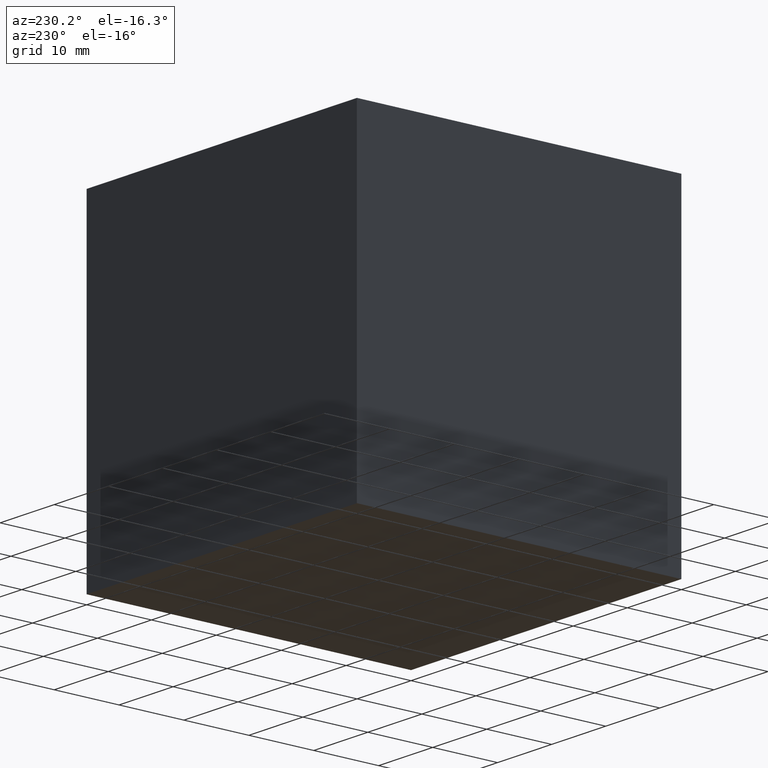
[diagram: clean part render]
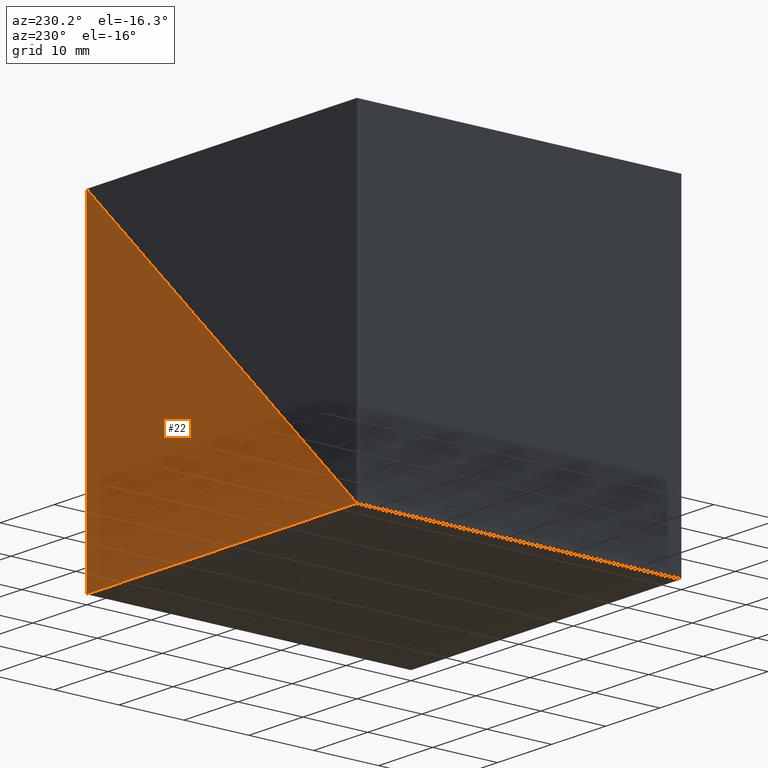
[diagram: same view with one face highlighted and labeled with its STEP entity id]
A machine part, auxiliary view. The second image highlights one B-rep face of the part: STEP entity #22.
In plain terms, the highlighted planar face has unit normal (-0, 1, 0).
Its self-contained STEP definition (entity closure, byte-faithful):
#17 = DIRECTION ( 'NONE',  ( -0.0000000000000000000, 1.000000000000000000, 0.0000000000000000000 ) ) ;
#20 = CARTESIAN_POINT ( 'NONE',  ( 0.0000000000000000000, 50.00000000000000000, 0.0000000000000000000 ) ) ;
#22 = ADVANCED_FACE ( 'NONE', ( #180 ), #299, .T. ) ;
#24 = VERTEX_POINT ( 'NONE', #132 ) ;
#27 = CARTESIAN_POINT ( 'NONE',  ( -50.00000000000000000, 50.00000000000000000, -49.99999999999999300 ) ) ;
#47 = DIRECTION ( 'NONE',  ( -1.000000000000000000, 0.0000000000000000000, 1.387778780781445700E-016 ) ) ;
#51 = CARTESIAN_POINT ( 'NONE',  ( 0.0000000000000000000, 50.00000000000000000, 0.0000000000000000000 ) ) ;
#53 = CARTESIAN_POINT ( 'NONE',  ( 0.0000000000000000000, 50.00000000000000000, -50.00000000000000000 ) ) ;
#54 = LINE ( 'NONE', #51, #121 ) ;
#94 = VECTOR ( 'NONE', #47, 1000.000000000000000 ) ;
#108 = ORIENTED_EDGE ( 'NONE', *, *, #248, .T. ) ;
#121 = VECTOR ( 'NONE', #241, 1000.000000000000000 ) ;
#122 = VECTOR ( 'NONE', #245, 1000.000000000000000 ) ;
#132 = CARTESIAN_POINT ( 'NONE',  ( -50.00000000000000000, 50.00000000000000000, -49.99999999999999300 ) ) ;
#134 = LINE ( 'NONE', #27, #122 ) ;
#149 = LINE ( 'NONE', #226, #94 ) ;
#151 = EDGE_CURVE ( 'NONE', #179, #291, #54, .T. ) ;
#179 = VERTEX_POINT ( 'NONE', #278 ) ;
#180 = FACE_OUTER_BOUND ( 'NONE', #203, .T. ) ;
#200 = ORIENTED_EDGE ( 'NONE', *, *, #151, .T. ) ;
#203 = EDGE_LOOP ( 'NONE', ( #242, #200, #108 ) ) ;
#226 = CARTESIAN_POINT ( 'NONE',  ( 0.0000000000000000000, 50.00000000000000000, -50.00000000000000000 ) ) ;
#241 = DIRECTION ( 'NONE',  ( 0.0000000000000000000, 0.0000000000000000000, -1.000000000000000000 ) ) ;
#242 = ORIENTED_EDGE ( 'NONE', *, *, #298, .T. ) ;
#245 = DIRECTION ( 'NONE',  ( 0.7071067811865475700, 0.0000000000000000000, 0.7071067811865474600 ) ) ;
#248 = EDGE_CURVE ( 'NONE', #291, #24, #149, .T. ) ;
#265 = AXIS2_PLACEMENT_3D ( 'NONE', #20, #17, #280 ) ;
#278 = CARTESIAN_POINT ( 'NONE',  ( 0.0000000000000000000, 50.00000000000000000, 0.0000000000000000000 ) ) ;
#280 = DIRECTION ( 'NONE',  ( 0.0000000000000000000, -0.0000000000000000000, 1.000000000000000000 ) ) ;
#291 = VERTEX_POINT ( 'NONE', #53 ) ;
#298 = EDGE_CURVE ( 'NONE', #24, #179, #134, .T. ) ;
#299 = PLANE ( 'NONE',  #265 ) ;